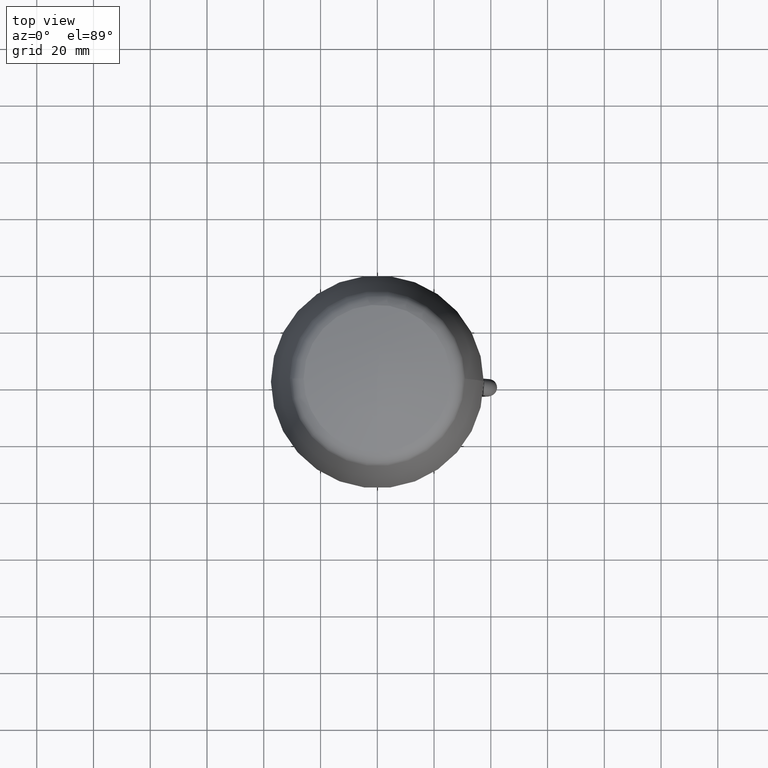
[diagram: clean part render]
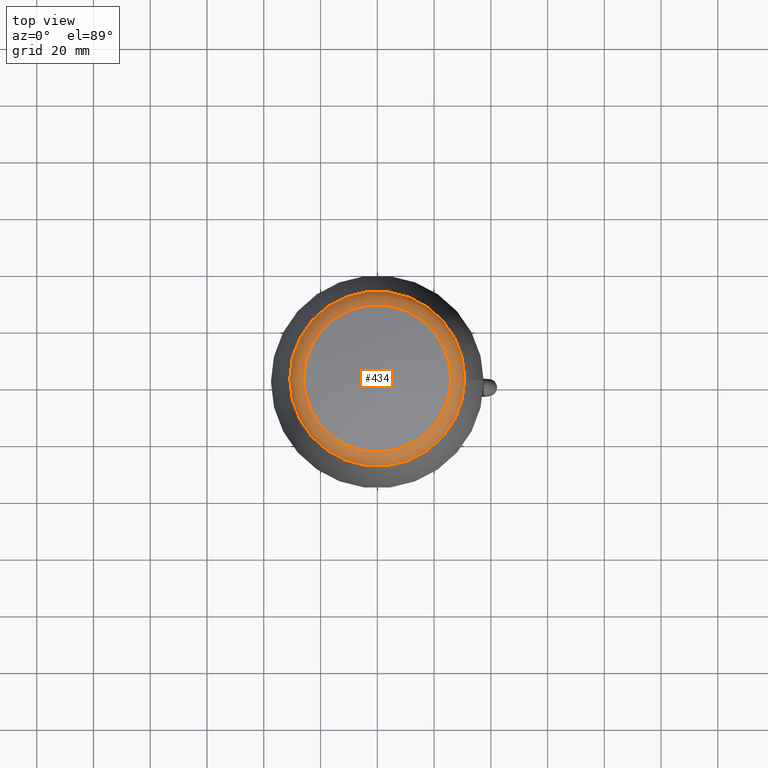
[diagram: same view with one face highlighted and labeled with its STEP entity id]
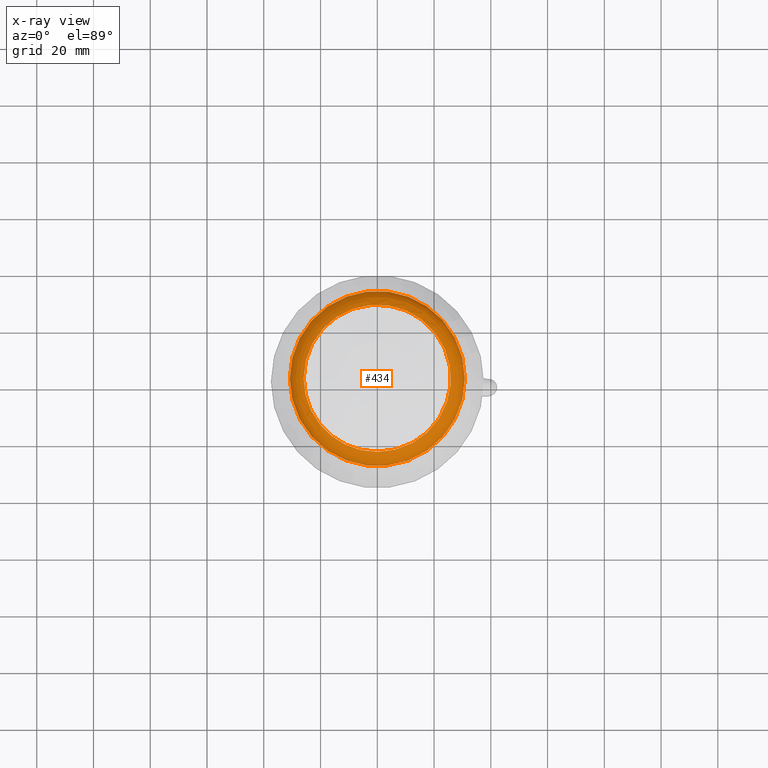
[diagram: x-ray of the same camera — body ghosted, the highlighted face saturated]
A machine part, top view. The second image highlights one B-rep face of the part: STEP entity #434.
The next image is the same camera in x-ray: the body ghosted, the highlighted face saturated — about 0% of this face is hidden behind the body in this view.
In plain terms, the highlighted toroidal blend (fillet) surface has major radius 23.9757 mm and minor (blend) radius 7 mm.
Its self-contained STEP definition (entity closure, byte-faithful):
#124=TOROIDAL_SURFACE('',#2930,23.9757276174959,7.);
#434=ADVANCED_FACE('',(#1051,#1052),#124,.T.);
#1051=FACE_BOUND('',#1234,.T.);
#1052=FACE_BOUND('',#1235,.T.);
#1234=EDGE_LOOP('',(#1620));
#1235=EDGE_LOOP('',(#1621));
#1620=ORIENTED_EDGE('',*,*,#2468,.F.);
#1621=ORIENTED_EDGE('',*,*,#2467,.F.);
#2189=VERTEX_POINT('',#4291);
#2190=VERTEX_POINT('',#4294);
#2467=EDGE_CURVE('',#2189,#2189,#2748,.T.);
#2468=EDGE_CURVE('',#2190,#2190,#2749,.T.);
#2748=CIRCLE('',#2927,25.9386526855949);
#2749=CIRCLE('',#2929,30.8389550829777);
#2927=AXIS2_PLACEMENT_3D('',#4290,#3364,#3365);
#2929=AXIS2_PLACEMENT_3D('',#4293,#3368,#3369);
#2930=AXIS2_PLACEMENT_3D('',#4295,#3370,#3371);
#3364=DIRECTION('',(0.,0.,1.));
#3365=DIRECTION('',(-1.,0.,0.));
#3368=DIRECTION('',(0.,0.,-1.));
#3369=DIRECTION('',(-1.,0.,0.));
#3370=DIRECTION('',(0.,0.,-1.));
#3371=DIRECTION('',(-1.,0.,0.));
#4290=CARTESIAN_POINT('',(3.66373598126302E-015,0.,90.241009205393));
#4291=CARTESIAN_POINT('',(-25.9386526855949,0.,90.241009205393));
#4293=CARTESIAN_POINT('',(3.66373598126302E-015,0.,84.8988556907093));
#4294=CARTESIAN_POINT('',(-30.8389550829777,0.,84.8988556907093));
#4295=CARTESIAN_POINT('',(3.66373598126302E-015,0.,83.5218630411078));